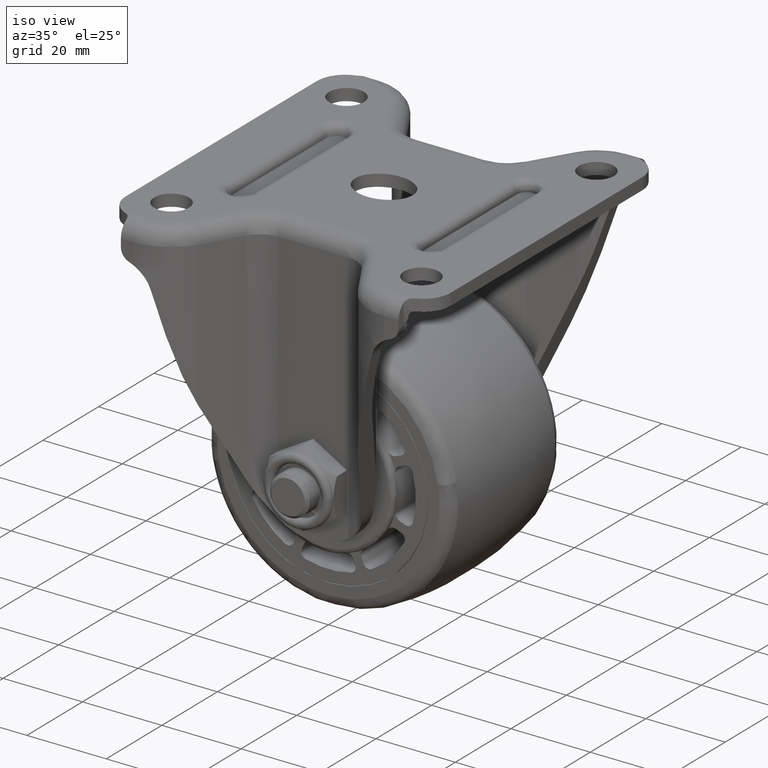
[diagram: clean part render]
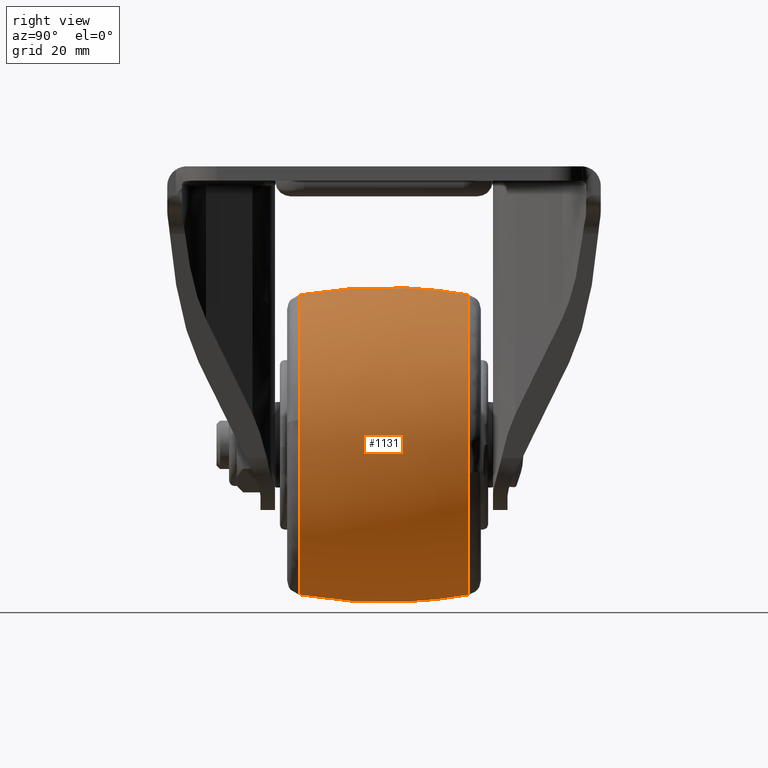
[diagram: tour spotlight — one face highlighted and labeled with its STEP entity id]
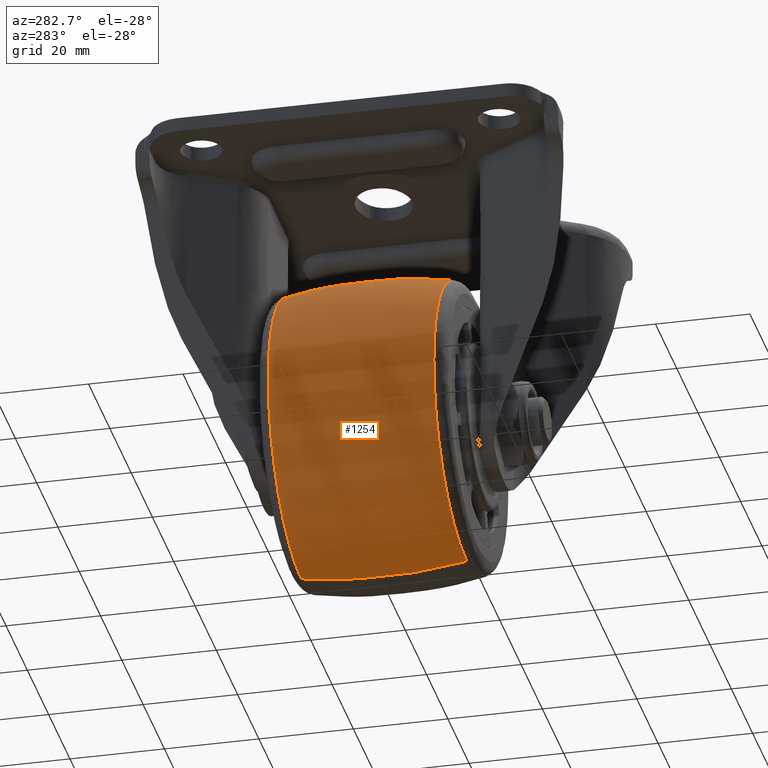
[diagram: tour spotlight — one face highlighted and labeled with its STEP entity id]
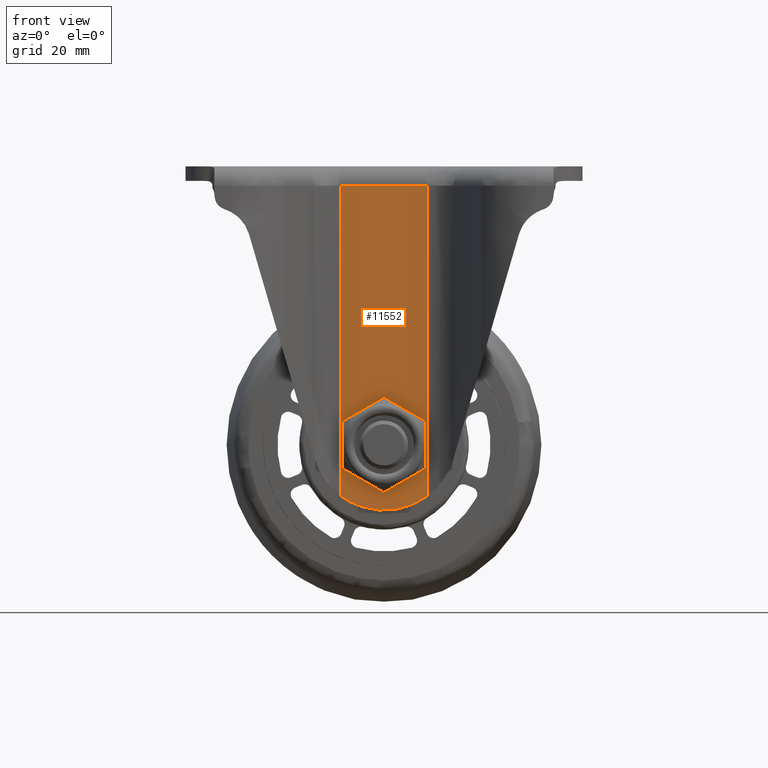
[diagram: tour spotlight — one face highlighted and labeled with its STEP entity id]
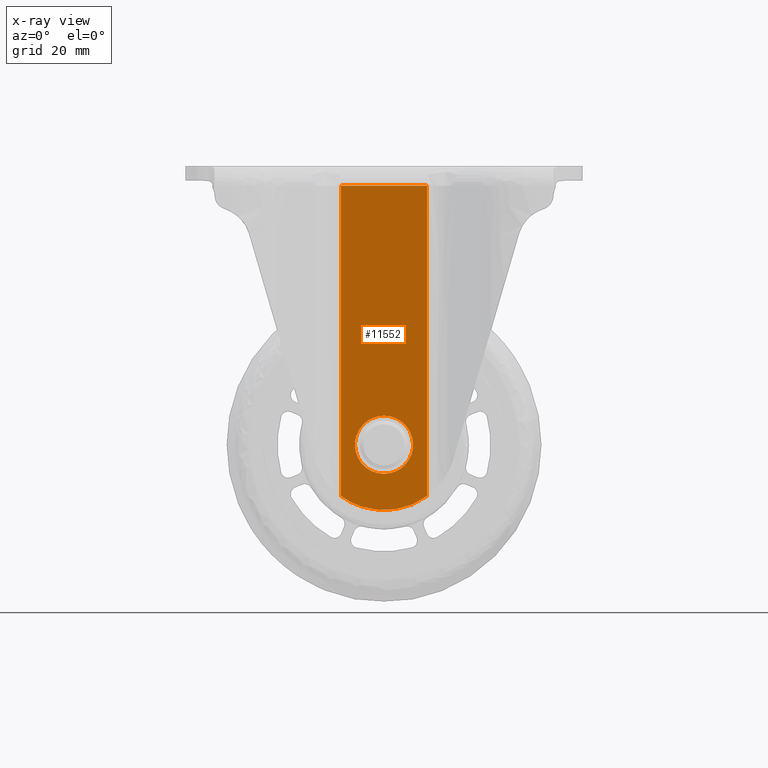
[diagram: x-ray of the same camera — body ghosted, this tour face saturated]
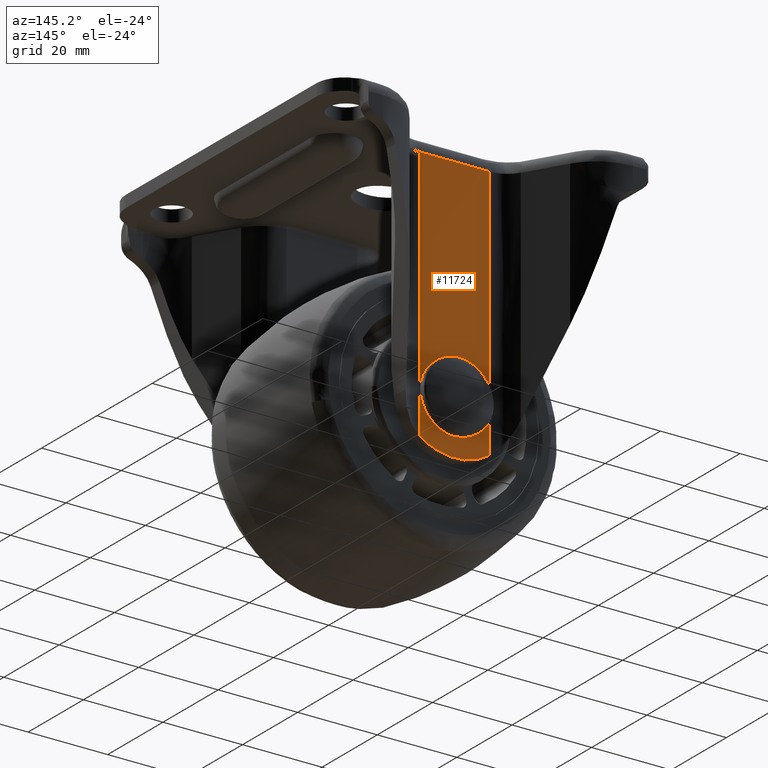
[diagram: tour spotlight — one face highlighted and labeled with its STEP entity id]
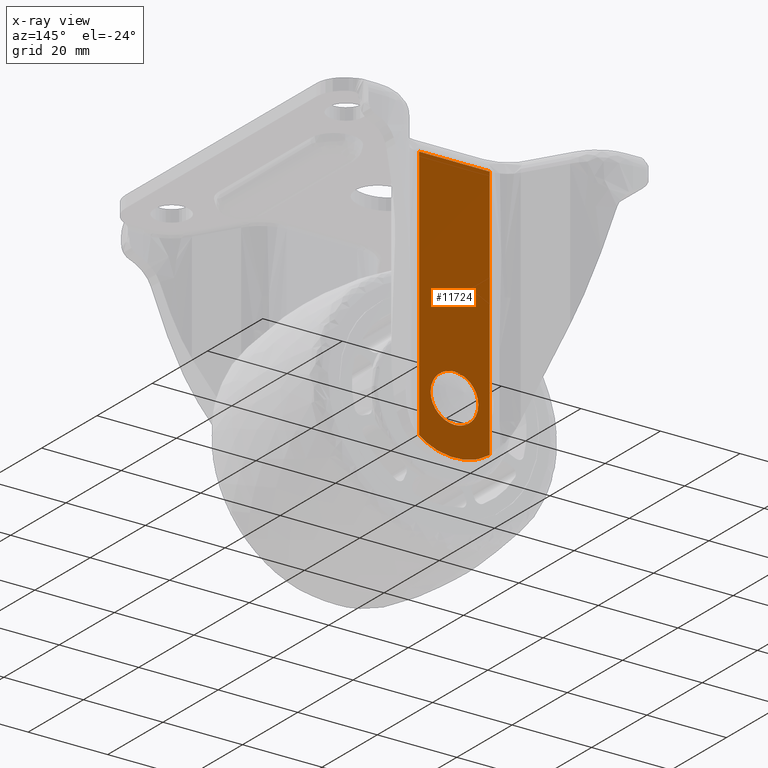
[diagram: x-ray of the same camera — body ghosted, this tour face saturated]
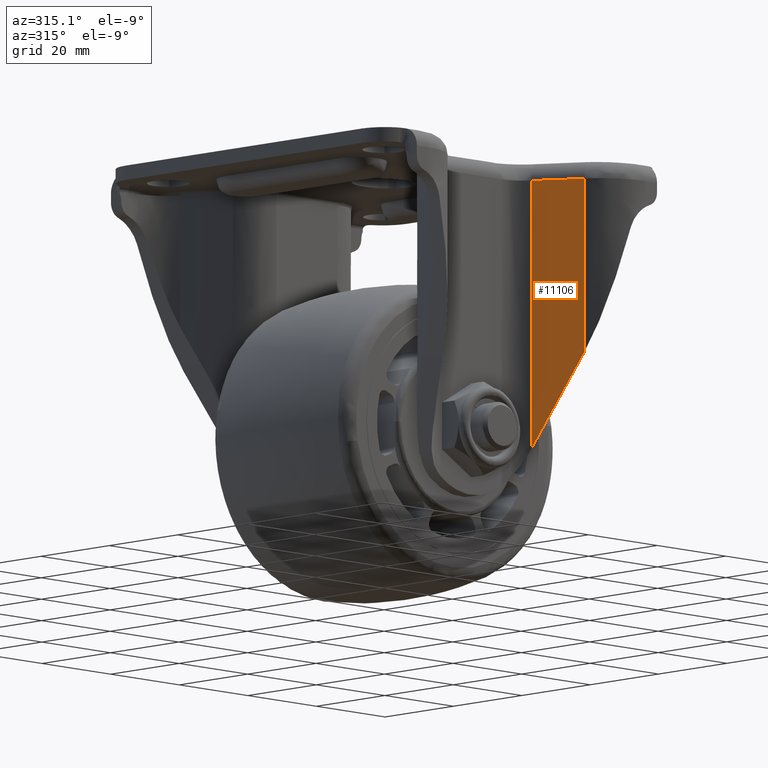
[diagram: tour spotlight — one face highlighted and labeled with its STEP entity id]
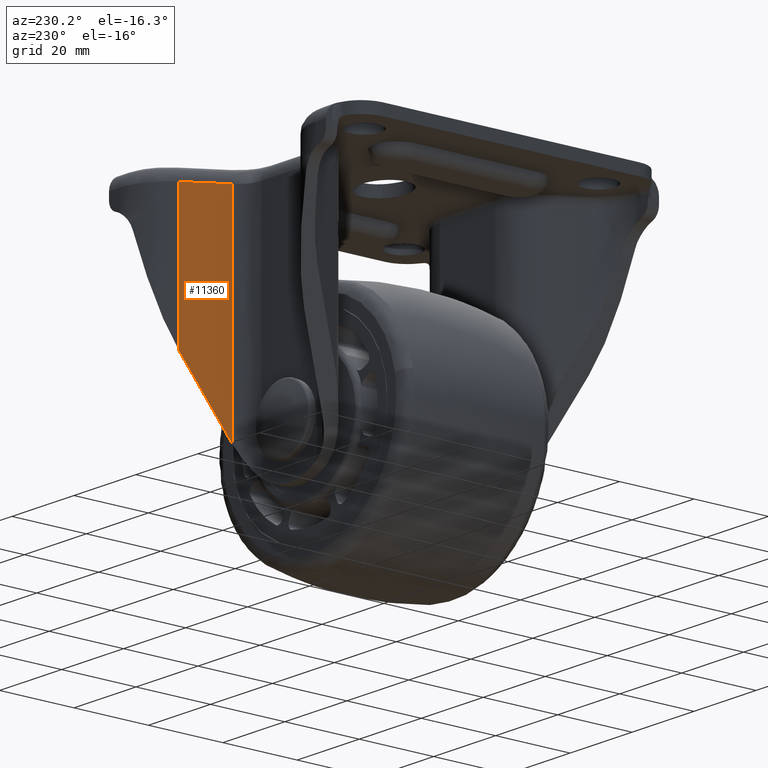
[diagram: tour spotlight — one face highlighted and labeled with its STEP entity id]
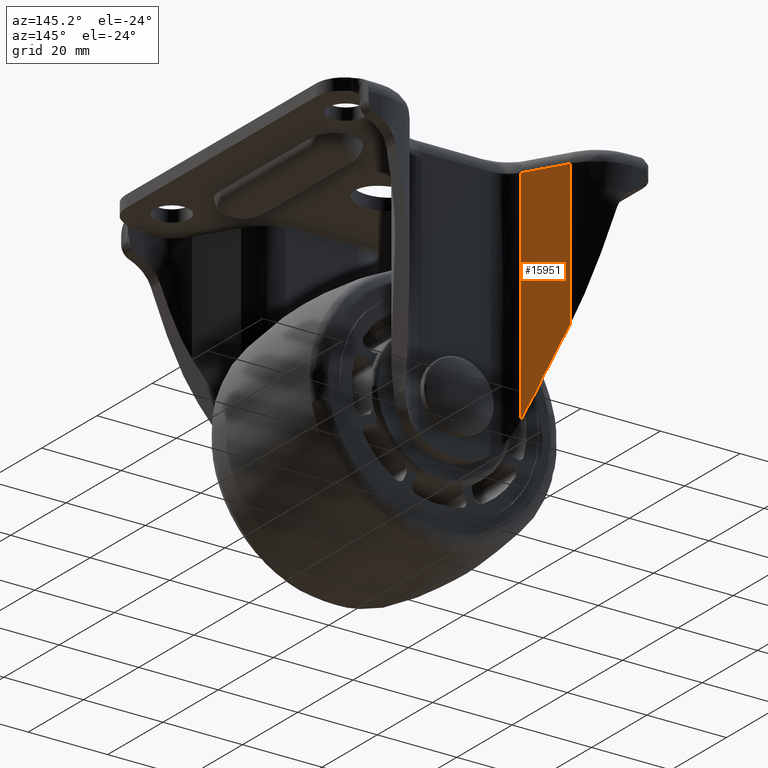
[diagram: tour spotlight — one face highlighted and labeled with its STEP entity id]
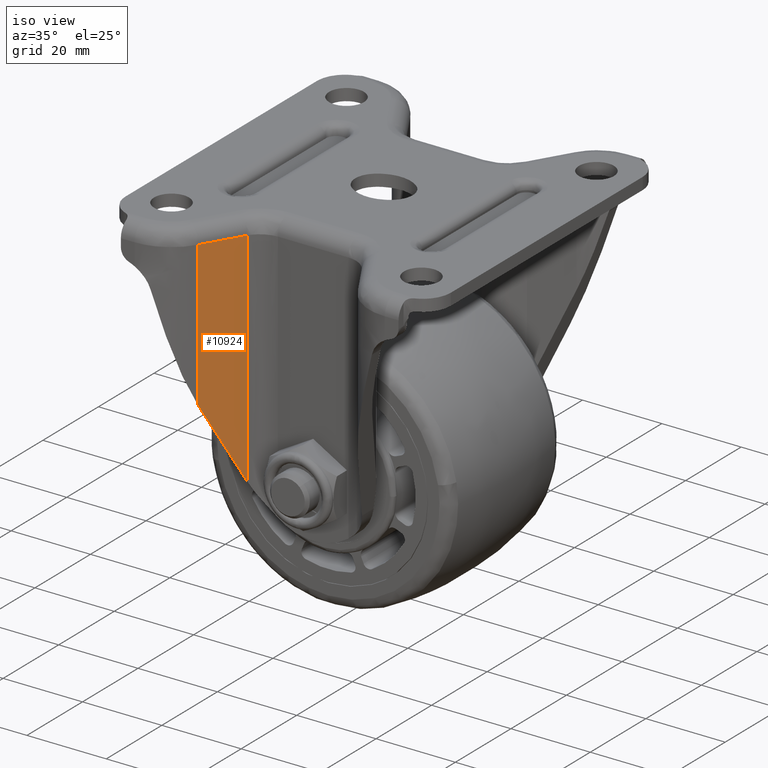
[diagram: tour spotlight — one face highlighted and labeled with its STEP entity id]
A machine part: a face-by-face anatomy tour. The part has 299 B-rep faces; the first image is the clean iso view, then the 8 largest visible faces are spotlighted one at a time (largest first), each with its STEP entity span.

Face 1 — right view, entity #1131. In plain terms, the highlighted face is a freeform B-spline surface patch.
Definition (entity closure, byte-faithful):
#987=CARTESIAN_POINT('',(-0.856139173198747,-19.280469753875106,-30.623715207231665));
#988=CARTESIAN_POINT('',(-0.908593974985393,-9.731530490283957,-32.500000000000007));
#989=CARTESIAN_POINT('',(-0.908593974985393,0.0,-32.500000000000007));
#990=CARTESIAN_POINT('',(-0.908593974985393,9.731530490283955,-32.500000000000007));
#991=CARTESIAN_POINT('',(-0.856139173198747,19.280469753875099,-30.623715207231665));
#992=CARTESIAN_POINT('',(-0.430562556700531,-19.280469753875106,-30.623715207231669));
#993=CARTESIAN_POINT('',(-0.456942699410384,-9.731530490283957,-32.500000000000000));
#994=CARTESIAN_POINT('',(-0.456942699410384,0.0,-32.500000000000000));
#995=CARTESIAN_POINT('',(-0.456942699410384,9.731530490283955,-32.500000000000000));
#996=CARTESIAN_POINT('',(-0.430562556700531,19.280469753875096,-30.623715207231669));
#997=CARTESIAN_POINT('',(30.623715207231665,-19.280469753875089,-30.623715207231665));
#998=CARTESIAN_POINT('',(32.499999999999993,-9.731530490283953,-32.499999999999993));
#999=CARTESIAN_POINT('',(32.500000000000007,0.0,-32.500000000000007));
#1000=CARTESIAN_POINT('',(32.499999999999993,9.731530490283952,-32.499999999999993));
#1001=CARTESIAN_POINT('',(30.623715207231665,19.280469753875089,-30.623715207231665));
#1002=CARTESIAN_POINT('',(30.623715207231662,-19.280469753875103,0.0));
#1003=CARTESIAN_POINT('',(32.499999999999993,-9.731530490283957,0.0));
#1004=CARTESIAN_POINT('',(32.500000000000000,0.0,0.0));
#1005=CARTESIAN_POINT('',(32.499999999999993,9.731530490283955,0.0));
#1006=CARTESIAN_POINT('',(30.623715207231673,19.280469753875103,0.0));
#1007=CARTESIAN_POINT('',(30.623715207231665,-19.280469753875089,30.623715207231665));
#1008=CARTESIAN_POINT('',(32.499999999999993,-9.731530490283953,32.499999999999993));
#1009=CARTESIAN_POINT('',(32.500000000000007,0.0,32.500000000000007));
#1010=CARTESIAN_POINT('',(32.499999999999993,9.731530490283952,32.499999999999993));
#1011=CARTESIAN_POINT('',(30.623715207231665,19.280469753875089,30.623715207231665));
#1012=CARTESIAN_POINT('',(-0.430562556700530,-19.280469753875106,30.623715207231669));
#1013=CARTESIAN_POINT('',(-0.456942699410383,-9.731530490283957,32.500000000000000));
#1014=CARTESIAN_POINT('',(-0.456942699410383,0.0,32.500000000000000));
#1015=CARTESIAN_POINT('',(-0.456942699410383,9.731530490283955,32.500000000000000));
#1016=CARTESIAN_POINT('',(-0.430562556700530,19.280469753875096,30.623715207231669));
#1017=CARTESIAN_POINT('',(-0.856139173198744,-19.280469753875106,30.623715207231665));
#1018=CARTESIAN_POINT('',(-0.908593974985391,-9.731530490283957,32.500000000000000));
#1019=CARTESIAN_POINT('',(-0.908593974985391,0.0,32.500000000000007));
#1020=CARTESIAN_POINT('',(-0.908593974985391,9.731530490283955,32.500000000000000));
#1021=CARTESIAN_POINT('',(-0.856139173198744,19.280469753875099,30.623715207231665));
#1029=(BOUNDED_SURFACE()B_SPLINE_SURFACE(2,2,((#987,#992,#997,#1002,#1007,#1012,#1017),(#988,#993,#998,#1003,#1008,#1013,#1018),(#989,#994,#999,#1004,#1009,#1014,#1019),(#990,#995,#1000,#1005,#1010,#1015,#1020),(#991,#996,#1001,#1006,#1011,#1016,#1021)),.UNSPECIFIED.,.F.,.F.,.U.)B_SPLINE_SURFACE_WITH_KNOTS((3,2,3),(3,1,2,1,3),(0.0,19.675401992808450,39.350803985616913),(0.0,1.076955262170048,54.924718370672402,108.772481479174800,109.849436741344800),.UNSPECIFIED.)GEOMETRIC_REPRESENTATION_ITEM()RATIONAL_B_SPLINE_SURFACE(((0.980708699014471,0.975030366269227,0.685435396261778,0.969352033523983,0.685435396261778,0.975030366269227,0.980708699014471),(0.991408181386219,0.985667898317530,0.692913461814418,0.979927615248842,0.692913461814418,0.985667898317530,0.991408181386219),(1.011715728752538,1.005857864376269,0.707106781186548,1.0,0.707106781186548,1.005857864376269,1.011715728752538),(0.991408181386219,0.985667898317530,0.692913461814418,0.979927615248842,0.692913461814418,0.985667898317530,0.991408181386219),(0.980708699014471,0.975030366269227,0.685435396261778,0.969352033523983,0.685435396261778,0.975030366269227,0.980708699014471)))REPRESENTATION_ITEM('')SURFACE());
#1030=CARTESIAN_POINT('',(0.0,-17.525756904777200,-30.952261756215570));
#1031=VERTEX_POINT('',#1030);
#1032=CARTESIAN_POINT('',(0.0,17.525757398797310,-30.952261668273788));
#1033=VERTEX_POINT('',#1032);
#1034=CARTESIAN_POINT('',(0.0,-17.525756904777200,-30.952261756215570));
#1035=CARTESIAN_POINT('',(0.0,-13.370421353496210,-31.692100188327061));
#1036=CARTESIAN_POINT('',(0.0,-5.239987016158849,-32.613409084386987));
#1037=CARTESIAN_POINT('',(0.0,6.524538029374305,-32.500045856004988));
#1038=CARTESIAN_POINT('',(0.0,14.002749739750620,-31.579457876793210));
#1039=CARTESIAN_POINT('',(0.0,17.525757398797310,-30.952261668273788));
#1040=B_SPLINE_CURVE_WITH_KNOTS('',3,(#1034,#1035,#1036,#1037,#1038,#1039),.UNSPECIFIED.,.F.,.U.,(4,1,1,4),(1.944521E-009,12.662039890658850,24.498281710933881,35.233487682683837),.UNSPECIFIED.);
#1041=EDGE_CURVE('',#1031,#1033,#1040,.T.);
#1042=ORIENTED_EDGE('',*,*,#1041,.T.);
#1043=CARTESIAN_POINT('',(30.404010644362661,17.525757632893409,-5.799875218789170));
#1044=VERTEX_POINT('',#1043);
#1045=CARTESIAN_POINT('',(0.0,17.525757398797310,-30.952261668273788));
#1046=CARTESIAN_POINT('',(2.284161954588713,17.525757409238210,-30.952709897507098));
#1047=CARTESIAN_POINT('',(5.515135104649169,17.525757425370340,-30.592909001694590));
#1048=CARTESIAN_POINT('',(10.033388092356789,17.525757450704550,-29.355571358114300));
#1049=CARTESIAN_POINT('',(13.399965950687180,17.525757471229699,-27.997762340464721));
#1050=CARTESIAN_POINT('',(16.755130408814040,17.525757493713709,-26.107908119827108));
#1051=CARTESIAN_POINT('',(19.823186104794939,17.525757516181262,-23.875374142445139));
#1052=CARTESIAN_POINT('',(23.000348391577990,17.525757541969089,-20.896403485636490));
#1053=CARTESIAN_POINT('',(25.652660726338070,17.525757566918450,-17.504632473912160));
#1054=CARTESIAN_POINT('',(27.771447229744592,17.525757590491128,-13.831781912032209));
#1055=CARTESIAN_POINT('',(29.353314381356672,17.525757611694210,-10.136584959972399));
#1056=CARTESIAN_POINT('',(30.111811812476770,17.525757625764498,-7.332148468918286));
#1057=CARTESIAN_POINT('',(30.404010644362661,17.525757632893409,-5.799875218789170));
#1058=B_SPLINE_CURVE_WITH_KNOTS('',3,(#1045,#1046,#1047,#1048,#1049,#1050,#1051,#1052,#1053,#1054,#1055,#1056,#1057),.UNSPECIFIED.,.F.,.U.,(4,1,1,1,1,1,1,1,1,1,4),(0.000000052141580,6.852342452785031,9.693563335324114,14.038970071219680,17.715851347497079,21.225603308796899,25.403793191189560,30.751994453358812,34.094613216229043,38.105743917555529,42.785386132706400),.UNSPECIFIED.);
#1059=EDGE_CURVE('',#1033,#1044,#1058,.T.);
#1060=ORIENTED_EDGE('',*,*,#1059,.T.);
#1061=CARTESIAN_POINT('',(0.0,17.525757398711619,30.952261668289051));
#1062=VERTEX_POINT('',#1061);
#1063=CARTESIAN_POINT('',(30.404010644362661,17.525757632893409,-5.799875218789170));
#1064=CARTESIAN_POINT('',(30.762937120658229,17.525757626901679,-3.919410940606337));
#1065=CARTESIAN_POINT('',(31.062059296469180,17.525757616037311,-0.800536838213344));
#1066=CARTESIAN_POINT('',(30.845400289247682,17.525757600602290,3.099817144732669));
#1067=CARTESIAN_POINT('',(30.352242134172659,17.525757586852048,6.326251867408215));
#1068=CARTESIAN_POINT('',(29.539590646894251,17.525757572333990,9.491417382510326));
#1069=CARTESIAN_POINT('',(28.069614453099959,17.525757553462679,13.263548669552311));
#1070=CARTESIAN_POINT('',(25.762368243721941,17.525757530473282,17.431742695048730));
#1071=CARTESIAN_POINT('',(22.681753857609628,17.525757506344320,21.261508164716759));
#1072=CARTESIAN_POINT('',(19.562930219686379,17.525757485987281,24.062912870592061));
#1073=CARTESIAN_POINT('',(16.456159155783311,17.525757467778259,26.306287034906969));
#1074=CARTESIAN_POINT('',(13.157254705836090,17.525757450555609,28.130412019730780));
#1075=CARTESIAN_POINT('',(9.041711470175828,17.525757431741710,29.699412156402602));
#1076=CARTESIAN_POINT('',(4.750503358322180,17.525757414510270,30.705119964668480));
#1077=CARTESIAN_POINT('',(1.630781746586889,17.525757403814129,30.952375046784500));
#1078=CARTESIAN_POINT('',(0.0,17.525757398711619,30.952261668289051));
#1079=B_SPLINE_CURVE_WITH_KNOTS('',3,(#1063,#1064,#1065,#1066,#1067,#1068,#1069,#1070,#1071,#1072,#1073,#1074,#1075,#1076,#1077,#1078),.UNSPECIFIED.,.F.,.U.,(4,1,1,1,1,1,1,1,1,1,1,1,1,4),(0.000000059456873,5.743202601971980,9.359293609766660,11.699129540403829,15.527947530455121,19.144065629913840,23.823739672517931,29.779620832213791,33.821112199925942,36.373671100576090,41.266050999263030,45.094877737927952,49.561833573445163,54.454168084180040),.UNSPECIFIED.);
#1080=EDGE_CURVE('',#1044,#1062,#1079,.T.);
#1081=ORIENTED_EDGE('',*,*,#1080,.T.);
#1082=CARTESIAN_POINT('',(0.0,-17.525756904688699,30.952261756231341));
#1083=VERTEX_POINT('',#1082);
#1084=CARTESIAN_POINT('',(0.0,-17.525756904688699,30.952261756231341));
#1085=CARTESIAN_POINT('',(0.0,-13.822084584276251,31.611623915921150));
#1086=CARTESIAN_POINT('',(0.0,-5.701531425854032,32.588644542142333));
#1087=CARTESIAN_POINT('',(0.0,6.068545673503115,32.556253461847042));
#1088=CARTESIAN_POINT('',(0.0,14.002750765742171,31.579446571535779));
#1089=CARTESIAN_POINT('',(0.0,17.525757398711619,30.952261668289051));
#1090=B_SPLINE_CURVE_WITH_KNOTS('',3,(#1084,#1085,#1086,#1087,#1088,#1089),.UNSPECIFIED.,.F.,.U.,(4,1,1,4),(1.950838E-009,11.285729403103799,24.498281710812041,35.233487682506883),.UNSPECIFIED.);
#1091=EDGE_CURVE('',#1083,#1062,#1090,.T.);
#1092=ORIENTED_EDGE('',*,*,#1091,.F.);
#1093=CARTESIAN_POINT('',(30.540160180614251,-17.525757148452580,5.033987871754214));
#1094=VERTEX_POINT('',#1093);
#1095=CARTESIAN_POINT('',(30.540160180614251,-17.525757148452580,5.033987871754214));
#1096=CARTESIAN_POINT('',(30.281919398056662,-17.525757141082551,6.601088755354095));
#1097=CARTESIAN_POINT('',(29.442337215585312,-17.525757123694088,10.026991717901140));
#1098=CARTESIAN_POINT('',(27.508742589350920,-17.525757097237729,14.466709151577120));
#1099=CARTESIAN_POINT('',(24.942479745212410,-17.525757069475581,18.492682278350991));
#1100=CARTESIAN_POINT('',(22.546901518326649,-17.525757047271110,21.308738959564099));
#1101=CARTESIAN_POINT('',(19.847961422461371,-17.525757024837731,23.825226596026670));
#1102=CARTESIAN_POINT('',(16.580421303315148,-17.525756999976529,26.288876425078399));
#1103=CARTESIAN_POINT('',(12.758720730087360,-17.525756974231150,28.323930522006979));
#1104=CARTESIAN_POINT('',(8.801080060201389,-17.525756950294490,29.739764829592911));
#1105=CARTESIAN_POINT('',(4.821394695828793,-17.525756928101000,30.687006760112059));
#1106=CARTESIAN_POINT('',(1.815146219963927,-17.525756913108960,30.952442924738548));
#1107=CARTESIAN_POINT('',(0.0,-17.525756904688699,30.952261756231341));
#1108=B_SPLINE_CURVE_WITH_KNOTS('',3,(#1095,#1096,#1097,#1098,#1099,#1100,#1101,#1102,#1103,#1104,#1105,#1106,#1107),.UNSPECIFIED.,.F.,.U.,(4,1,1,1,1,1,1,1,1,1,4),(0.000000054958321,4.764720667701781,10.550487389224971,14.464382945104930,19.058981908594710,21.611524713742430,25.525342026473840,31.311119165777619,34.544347426294202,38.117899537599449,43.563304237522381),.UNSPECIFIED.);
#1109=EDGE_CURVE('',#1094,#1083,#1108,.T.);
#1110=ORIENTED_EDGE('',*,*,#1109,.F.);
#1111=CARTESIAN_POINT('',(0.0,-17.525756904777200,-30.952261756215570));
#1112=CARTESIAN_POINT('',(1.747275785893831,-17.525756910614898,-30.952391331184391));
#1113=CARTESIAN_POINT('',(4.892320771205954,-17.525756922174850,-30.685237143167360));
#1114=CARTESIAN_POINT('',(9.182084798172813,-17.525756940588010,-29.648636447783701));
#1115=CARTESIAN_POINT('',(13.236173737415800,-17.525756960245459,-28.095795053580058));
#1116=CARTESIAN_POINT('',(17.463570160494719,-17.525756983633691,-25.742157452753851));
#1117=CARTESIAN_POINT('',(21.281177764316489,-17.525757008559641,-22.649915467843659));
#1118=CARTESIAN_POINT('',(24.096438210823610,-17.525757030244041,-19.530268652538439));
#1119=CARTESIAN_POINT('',(25.972879415539708,-17.525757046806010,-16.915275921907629));
#1120=CARTESIAN_POINT('',(27.815111532661369,-17.525757065307332,-13.778367625519980));
#1121=CARTESIAN_POINT('',(29.517799350405681,-17.525757086746001,-9.776745470058742));
#1122=CARTESIAN_POINT('',(30.650417059629820,-17.525757109043770,-5.072749683096410));
#1123=CARTESIAN_POINT('',(31.083939198492370,-17.525757129992549,-0.118026339971503));
#1124=CARTESIAN_POINT('',(30.847257273975671,-17.525757142151051,3.172082305136267));
#1125=CARTESIAN_POINT('',(30.540160180614251,-17.525757148452580,5.033987871754214));
#1126=B_SPLINE_CURVE_WITH_KNOTS('',3,(#1111,#1112,#1113,#1114,#1115,#1116,#1117,#1118,#1119,#1120,#1121,#1122,#1123,#1124,#1125),.UNSPECIFIED.,.F.,.U.,(4,1,1,1,1,1,1,1,1,1,1,1,4),(0.000000064459755,5.241820252651905,9.435274345049308,13.209389203633780,18.241559882642552,23.902748251931651,27.886463436430510,30.821867435202691,33.547648736851478,38.789475155061773,43.821626382174429,48.015087454626567,53.676248560949460),.UNSPECIFIED.);
#1127=EDGE_CURVE('',#1031,#1094,#1126,.T.);
#1128=ORIENTED_EDGE('',*,*,#1127,.F.);
#1129=EDGE_LOOP('',(#1042,#1060,#1081,#1092,#1110,#1128));
#1130=FACE_OUTER_BOUND('',#1129,.T.);
#1131=ADVANCED_FACE('',(#1130),#1029,.T.);

Face 2 — auxiliary view, entity #1254. In plain terms, the highlighted face is a freeform B-spline surface patch.
Definition (entity closure, byte-faithful):
#1030=CARTESIAN_POINT('',(0.0,-17.525756904777200,-30.952261756215570));
#1031=VERTEX_POINT('',#1030);
#1032=CARTESIAN_POINT('',(0.0,17.525757398797310,-30.952261668273788));
#1033=VERTEX_POINT('',#1032);
#1034=CARTESIAN_POINT('',(0.0,-17.525756904777200,-30.952261756215570));
#1035=CARTESIAN_POINT('',(0.0,-13.370421353496210,-31.692100188327061));
#1036=CARTESIAN_POINT('',(0.0,-5.239987016158849,-32.613409084386987));
#1037=CARTESIAN_POINT('',(0.0,6.524538029374305,-32.500045856004988));
#1038=CARTESIAN_POINT('',(0.0,14.002749739750620,-31.579457876793210));
#1039=CARTESIAN_POINT('',(0.0,17.525757398797310,-30.952261668273788));
#1040=B_SPLINE_CURVE_WITH_KNOTS('',3,(#1034,#1035,#1036,#1037,#1038,#1039),.UNSPECIFIED.,.F.,.U.,(4,1,1,4),(1.944521E-009,12.662039890658850,24.498281710933881,35.233487682683837),.UNSPECIFIED.);
#1041=EDGE_CURVE('',#1031,#1033,#1040,.T.);
#1061=CARTESIAN_POINT('',(0.0,17.525757398711619,30.952261668289051));
#1062=VERTEX_POINT('',#1061);
#1082=CARTESIAN_POINT('',(0.0,-17.525756904688699,30.952261756231341));
#1083=VERTEX_POINT('',#1082);
#1084=CARTESIAN_POINT('',(0.0,-17.525756904688699,30.952261756231341));
#1085=CARTESIAN_POINT('',(0.0,-13.822084584276251,31.611623915921150));
#1086=CARTESIAN_POINT('',(0.0,-5.701531425854032,32.588644542142333));
#1087=CARTESIAN_POINT('',(0.0,6.068545673503115,32.556253461847042));
#1088=CARTESIAN_POINT('',(0.0,14.002750765742171,31.579446571535779));
#1089=CARTESIAN_POINT('',(0.0,17.525757398711619,30.952261668289051));
#1090=B_SPLINE_CURVE_WITH_KNOTS('',3,(#1084,#1085,#1086,#1087,#1088,#1089),.UNSPECIFIED.,.F.,.U.,(4,1,1,4),(1.950838E-009,11.285729403103799,24.498281710812041,35.233487682506883),.UNSPECIFIED.);
#1091=EDGE_CURVE('',#1083,#1062,#1090,.T.);
#1132=CARTESIAN_POINT('',(0.856139173198747,-19.280469753875106,30.623715207231665));
#1133=CARTESIAN_POINT('',(0.908593974985393,-9.731530490283957,32.500000000000007));
#1134=CARTESIAN_POINT('',(0.908593974985393,0.0,32.500000000000007));
#1135=CARTESIAN_POINT('',(0.908593974985393,9.731530490283955,32.500000000000007));
#1136=CARTESIAN_POINT('',(0.856139173198747,19.280469753875099,30.623715207231665));
#1137=CARTESIAN_POINT('',(0.430562556700531,-19.280469753875106,30.623715207231669));
#1138=CARTESIAN_POINT('',(0.456942699410384,-9.731530490283957,32.500000000000000));
#1139=CARTESIAN_POINT('',(0.456942699410384,0.0,32.500000000000000));
#1140=CARTESIAN_POINT('',(0.456942699410384,9.731530490283955,32.500000000000000));
#1141=CARTESIAN_POINT('',(0.430562556700531,19.280469753875096,30.623715207231669));
#1142=CARTESIAN_POINT('',(-30.623715207231665,-19.280469753875089,30.623715207231665));
#1143=CARTESIAN_POINT('',(-32.499999999999993,-9.731530490283953,32.499999999999993));
#1144=CARTESIAN_POINT('',(-32.500000000000007,0.0,32.500000000000007));
#1145=CARTESIAN_POINT('',(-32.499999999999993,9.731530490283952,32.499999999999993));
#1146=CARTESIAN_POINT('',(-30.623715207231665,19.280469753875089,30.623715207231665));
#1147=CARTESIAN_POINT('',(-30.623715207231662,-19.280469753875103,0.0));
#1148=CARTESIAN_POINT('',(-32.499999999999993,-9.731530490283957,0.0));
#1149=CARTESIAN_POINT('',(-32.500000000000000,0.0,0.0));
#1150=CARTESIAN_POINT('',(-32.499999999999993,9.731530490283955,0.0));
#1151=CARTESIAN_POINT('',(-30.623715207231673,19.280469753875103,0.0));
#1152=CARTESIAN_POINT('',(-30.623715207231665,-19.280469753875089,-30.623715207231665));
#1153=CARTESIAN_POINT('',(-32.499999999999993,-9.731530490283953,-32.499999999999993));
#1154=CARTESIAN_POINT('',(-32.500000000000007,0.0,-32.500000000000007));
#1155=CARTESIAN_POINT('',(-32.499999999999993,9.731530490283952,-32.499999999999993));
#1156=CARTESIAN_POINT('',(-30.623715207231665,19.280469753875089,-30.623715207231665));
#1157=CARTESIAN_POINT('',(0.430562556700530,-19.280469753875106,-30.623715207231669));
#1158=CARTESIAN_POINT('',(0.456942699410383,-9.731530490283957,-32.500000000000000));
#1159=CARTESIAN_POINT('',(0.456942699410383,0.0,-32.500000000000000));
#1160=CARTESIAN_POINT('',(0.456942699410383,9.731530490283955,-32.500000000000000));
#1161=CARTESIAN_POINT('',(0.430562556700530,19.280469753875096,-30.623715207231669));
#1162=CARTESIAN_POINT('',(0.856139173198744,-19.280469753875106,-30.623715207231665));
#1163=CARTESIAN_POINT('',(0.908593974985391,-9.731530490283957,-32.500000000000000));
#1164=CARTESIAN_POINT('',(0.908593974985391,0.0,-32.500000000000007));
#1165=CARTESIAN_POINT('',(0.908593974985391,9.731530490283955,-32.500000000000000));
#1166=CARTESIAN_POINT('',(0.856139173198744,19.280469753875099,-30.623715207231665));
#1174=(BOUNDED_SURFACE()B_SPLINE_SURFACE(2,2,((#1132,#1137,#1142,#1147,#1152,#1157,#1162),(#1133,#1138,#1143,#1148,#1153,#1158,#1163),(#1134,#1139,#1144,#1149,#1154,#1159,#1164),(#1135,#1140,#1145,#1150,#1155,#1160,#1165),(#1136,#1141,#1146,#1151,#1156,#1161,#1166)),.UNSPECIFIED.,.F.,.F.,.U.)B_SPLINE_SURFACE_WITH_KNOTS((3,2,3),(3,1,2,1,3),(0.0,19.675401992808450,39.350803985616913),(0.0,1.076955262170048,54.924718370672402,108.772481479174800,109.849436741344800),.UNSPECIFIED.)GEOMETRIC_REPRESENTATION_ITEM()RATIONAL_B_SPLINE_SURFACE(((0.980708699014471,0.975030366269227,0.685435396261778,0.969352033523983,0.685435396261778,0.975030366269227,0.980708699014471),(0.991408181386219,0.985667898317530,0.692913461814418,0.979927615248842,0.692913461814418,0.985667898317530,0.991408181386219),(1.011715728752538,1.005857864376269,0.707106781186548,1.0,0.707106781186548,1.005857864376269,1.011715728752538),(0.991408181386219,0.985667898317530,0.692913461814418,0.979927615248842,0.692913461814418,0.985667898317530,0.991408181386219),(0.980708699014471,0.975030366269227,0.685435396261778,0.969352033523983,0.685435396261778,0.975030366269227,0.980708699014471)))REPRESENTATION_ITEM('')SURFACE());
#1175=ORIENTED_EDGE('',*,*,#1041,.F.);
#1176=CARTESIAN_POINT('',(-30.540160180611721,-17.525757148466980,-5.033987871753793));
#1177=VERTEX_POINT('',#1176);
#1178=CARTESIAN_POINT('',(-30.540160180611721,-17.525757148466980,-5.033987871753793));
#1179=CARTESIAN_POINT('',(-30.226715858379940,-17.525757139523289,-6.936939958168107));
#1180=CARTESIAN_POINT('',(-29.372558058144111,-17.525757122766141,-10.187881558142371));
#1181=CARTESIAN_POINT('',(-27.475647331963799,-17.525757097203591,-14.446822054016080));
#1182=CARTESIAN_POINT('',(-25.363105262829109,-17.525757073871581,-17.885082229068001));
#1183=CARTESIAN_POINT('',(-23.190031963504680,-17.525757053157211,-20.586571489304529));
#1184=CARTESIAN_POINT('',(-20.589968079992861,-17.525757030789212,-23.205094832932851));
#1185=CARTESIAN_POINT('',(-17.166667046234569,-17.525757004156290,-25.936950859575951));
#1186=CARTESIAN_POINT('',(-12.873009748146160,-17.525756974938460,-28.299585279419759));
#1187=CARTESIAN_POINT('',(-8.747545902732346,-17.525756950040378,-29.762671874534419));
#1188=CARTESIAN_POINT('',(-4.651219324560918,-17.525756927340790,-30.702000833608871));
#1189=CARTESIAN_POINT('',(-1.815149558063349,-17.525756913197160,-30.952454421885921));
#1190=CARTESIAN_POINT('',(0.0,-17.525756904777200,-30.952261756215570));
#1191=B_SPLINE_CURVE_WITH_KNOTS('',3,(#1178,#1179,#1180,#1181,#1182,#1183,#1184,#1185,#1186,#1187,#1188,#1189,#1190),.UNSPECIFIED.,.F.,.U.,(4,1,1,1,1,1,1,1,1,1,4),(0.000000055018177,5.785745742053578,10.039978184642839,13.953871596049140,17.867774047458632,20.420333239161032,25.014831762081052,30.970784296097680,35.054857434018807,38.117899537591938,43.563304237506642),.UNSPECIFIED.);
#1192=EDGE_CURVE('',#1177,#1031,#1191,.T.);
#1193=ORIENTED_EDGE('',*,*,#1192,.F.);
#1194=CARTESIAN_POINT('',(0.0,-17.525756904688699,30.952261756231341));
#1195=CARTESIAN_POINT('',(-1.397818819093093,-17.525756909358989,30.952318594141069));
#1196=CARTESIAN_POINT('',(-4.193435373528887,-17.525756919447399,30.762568375908678));
#1197=CARTESIAN_POINT('',(-8.104186589642669,-17.525756935688261,29.956707743577820));
#1198=CARTESIAN_POINT('',(-12.212511004756980,-17.525756954931051,28.556292875453380));
#1199=CARTESIAN_POINT('',(-16.150678322273620,-17.525756975984269,26.551869702653491));
#1200=CARTESIAN_POINT('',(-20.237192634282149,-17.525757001289769,23.593581966769289));
#1201=CARTESIAN_POINT('',(-23.559889628015831,-17.525757025489419,20.268299588677301));
#1202=CARTESIAN_POINT('',(-26.321911446420341,-17.525757049663088,16.473605216637260));
#1203=CARTESIAN_POINT('',(-28.235682217763610,-17.525757070178081,12.888485280192020));
#1204=CARTESIAN_POINT('',(-29.721787938973470,-17.525757090617549,8.959742554431312));
#1205=CARTESIAN_POINT('',(-30.662629329448681,-17.525757109619789,4.933182887200608));
#1206=CARTESIAN_POINT('',(-31.083936227768952,-17.525757129992041,0.118026556052717));
#1207=CARTESIAN_POINT('',(-30.847259666172601,-17.525757142160209,-3.172082061127728));
#1208=CARTESIAN_POINT('',(-30.540160180611721,-17.525757148466980,-5.033987871753793));
#1209=B_SPLINE_CURVE_WITH_KNOTS('',3,(#1194,#1195,#1196,#1197,#1198,#1199,#1200,#1201,#1202,#1203,#1204,#1205,#1206,#1207,#1208),.UNSPECIFIED.,.F.,.U.,(4,1,1,1,1,1,1,1,1,1,1,1,4),(0.000000064466583,4.193455742919760,8.386909233540223,11.951346168717979,17.193191037239419,21.596338774952152,27.047765386762599,31.241228370003160,35.644380092705283,39.208817316509858,43.821626382187517,48.015087454640678,53.676248560965021),.UNSPECIFIED.);
#1210=EDGE_CURVE('',#1083,#1177,#1209,.T.);
#1211=ORIENTED_EDGE('',*,*,#1210,.F.);
#1212=ORIENTED_EDGE('',*,*,#1091,.T.);
#1213=CARTESIAN_POINT('',(-30.404010644365460,17.525757632877362,5.799875218789708));
#1214=VERTEX_POINT('',#1213);
#1215=CARTESIAN_POINT('',(0.0,17.525757398711619,30.952261668289051));
#1216=CARTESIAN_POINT('',(-1.392750564068792,17.525757405078799,30.952313144380518));
#1217=CARTESIAN_POINT('',(-4.233952377037756,17.525757418795191,30.760193127060020));
#1218=CARTESIAN_POINT('',(-8.061261033027705,17.525757439306410,29.963676022827290));
#1219=CARTESIAN_POINT('',(-12.129475631342640,17.525757463120350,28.585386740512710));
#1220=CARTESIAN_POINT('',(-15.929249395997950,17.525757487693330,26.682119960884719));
#1221=CARTESIAN_POINT('',(-19.205242178192290,17.525757511487178,24.351778215657269));
#1222=CARTESIAN_POINT('',(-21.873217014069841,17.525757532650541,21.982150115089748));
#1223=CARTESIAN_POINT('',(-24.017140661937230,17.525757551348399,19.630660407753460));
#1224=CARTESIAN_POINT('',(-26.042876521229989,17.525757571214449,16.827988793760721));
#1225=CARTESIAN_POINT('',(-27.771463170693220,17.525757590452521,13.831793439301361));
#1226=CARTESIAN_POINT('',(-29.353316614614169,17.525757611666311,10.136586508446280));
#1227=CARTESIAN_POINT('',(-30.111810805927110,17.525757625744269,7.332148204894726));
#1228=CARTESIAN_POINT('',(-30.404010644365460,17.525757632877362,5.799875218789708));
#1229=B_SPLINE_CURVE_WITH_KNOTS('',3,(#1215,#1216,#1217,#1218,#1219,#1220,#1221,#1222,#1223,#1224,#1225,#1226,#1227,#1228),.UNSPECIFIED.,.F.,.U.,(4,1,1,1,1,1,1,1,1,1,1,4),(0.000000052049515,4.178251946622048,8.523641830223816,11.699133694757681,17.047312025914810,21.225603308754849,23.732506284140001,27.743629137993199,30.751994453340870,34.094613216220409,38.105743917557952,42.785386132721811),.UNSPECIFIED.);
#1230=EDGE_CURVE('',#1062,#1214,#1229,.T.);
#1231=ORIENTED_EDGE('',*,*,#1230,.T.);
#1232=CARTESIAN_POINT('',(-30.404010644365460,17.525757632877362,5.799875218789708));
#1233=CARTESIAN_POINT('',(-30.683091818839660,17.525757628220870,4.337285230516868));
#1234=CARTESIAN_POINT('',(-30.988260144179801,17.525757619298499,1.724782301650105));
#1235=CARTESIAN_POINT('',(-30.940834080461300,17.525757602505760,-2.677660295141938));
#1236=CARTESIAN_POINT('',(-30.327927837083529,17.525757585427460,-6.687513374377797));
#1237=CARTESIAN_POINT('',(-29.139954635493059,17.525757566801069,-10.631133931258089));
#1238=CARTESIAN_POINT('',(-27.905872854100458,17.525757552084659,-13.502240035980529));
#1239=CARTESIAN_POINT('',(-26.300731582635152,17.525757536010659,-16.425415734042790));
#1240=CARTESIAN_POINT('',(-24.481485402233819,17.525757520377010,-19.054877922421600));
#1241=CARTESIAN_POINT('',(-22.088273053074278,17.525757502616230,-21.772111656414388));
#1242=CARTESIAN_POINT('',(-19.620363412068059,17.525757486395399,-24.019908228920290));
#1243=CARTESIAN_POINT('',(-16.290199248656659,17.525757466819289,-26.442138108702821));
#1244=CARTESIAN_POINT('',(-12.831808490108211,17.525757449057600,-28.277591748017809));
#1245=CARTESIAN_POINT('',(-9.164854061910138,17.525757432517739,-29.617953722269121));
#1246=CARTESIAN_POINT('',(-5.175863381064067,17.525757416171679,-30.640205684012368));
#1247=CARTESIAN_POINT('',(-2.056225865764422,17.525757405229541,-30.952540593470360));
#1248=CARTESIAN_POINT('',(0.0,17.525757398797310,-30.952261668273788));
#1249=B_SPLINE_CURVE_WITH_KNOTS('',3,(#1232,#1233,#1234,#1235,#1236,#1237,#1238,#1239,#1240,#1241,#1242,#1243,#1244,#1245,#1246,#1247,#1248),.UNSPECIFIED.,.F.,.U.,(4,1,1,1,1,1,1,1,1,1,1,1,1,1,4),(0.000000059447792,4.466932761810526,7.870327087192393,13.188118679279990,16.591506232057949,20.207624674832179,22.547461542861640,26.589005235762802,29.779620832206788,33.395707121981467,36.586393884855283,42.116898309680742,45.094877737915603,48.285556921221939,54.454168084164998),.UNSPECIFIED.);
#1250=EDGE_CURVE('',#1214,#1033,#1249,.T.);
#1251=ORIENTED_EDGE('',*,*,#1250,.T.);
#1252=EDGE_LOOP('',(#1175,#1193,#1211,#1212,#1231,#1251));
#1253=FACE_OUTER_BOUND('',#1252,.T.);
#1254=ADVANCED_FACE('',(#1253),#1174,.T.);

Face 3 — front view, entity #11552. An x-ray twin of the same camera follows (body ghosted, this face saturated) — the face is partly hidden behind the body. In plain terms, the highlighted face is a freeform B-spline surface patch.
Definition (entity closure, byte-faithful):
#9278=CARTESIAN_POINT('',(-4.130127253373701,-25.500000000000000,4.352245935806493));
#9279=VERTEX_POINT('',#9278);
#9285=CARTESIAN_POINT('',(-5.999999999999838,-25.500000000000000,-0.000001396979707));
#9286=VERTEX_POINT('',#9285);
#9287=CARTESIAN_POINT('',(-4.130127253373701,-25.500000000000000,4.352245935806493));
#9288=CARTESIAN_POINT('',(-4.571888717231888,-25.500000000000011,3.933448140681791));
#9289=CARTESIAN_POINT('',(-5.215893128079406,-25.500000000000028,3.101767204736873));
#9290=CARTESIAN_POINT('',(-5.850858830483599,-25.500000000000011,1.597676105969814));
#9291=CARTESIAN_POINT('',(-6.000231755029711,-25.500000000000000,0.583343725334165));
#9292=CARTESIAN_POINT('',(-5.999999999999838,-25.500000000000000,-0.000001396979707));
#9293=B_SPLINE_CURVE_WITH_KNOTS('',3,(#9287,#9288,#9289,#9290,#9291,#9292),.UNSPECIFIED.,.F.,.U.,(4,1,1,4),(0.000000043648671,1.826074214155518,3.119521030151865,4.869502438942947),.UNSPECIFIED.);
#9294=EDGE_CURVE('',#9279,#9286,#9293,.T.);
#9296=CARTESIAN_POINT('',(0.0,-25.500000000000000,-6.0));
#9297=VERTEX_POINT('',#9296);
#9298=CARTESIAN_POINT('',(-5.999999999999838,-25.500000000000000,-0.000001396979707));
#9299=CARTESIAN_POINT('',(-6.000017558060441,-25.499999999999989,-0.343611575592018));
#9300=CARTESIAN_POINT('',(-5.934498755613486,-25.500000000000021,-1.104468147520529));
#9301=CARTESIAN_POINT('',(-5.598193178688803,-25.499999999999950,-2.291628568929439));
#9302=CARTESIAN_POINT('',(-4.973726671386223,-25.500000000000110,-3.442865105181237));
#9303=CARTESIAN_POINT('',(-4.226960835984764,-25.499999999999861,-4.297791622598433));
#9304=CARTESIAN_POINT('',(-3.428594289561259,-25.500000000000131,-4.952961627829074));
#9305=CARTESIAN_POINT('',(-2.495027656681363,-25.499999999999961,-5.504899246901395));
#9306=CARTESIAN_POINT('',(-1.300807071009809,-25.499999999999979,-5.907504541465607));
#9307=CARTESIAN_POINT('',(-0.417243989281693,-25.499999999999989,-6.000051202689821));
#9308=CARTESIAN_POINT('',(0.0,-25.500000000000000,-6.0));
#9309=B_SPLINE_CURVE_WITH_KNOTS('',3,(#9298,#9299,#9300,#9301,#9302,#9303,#9304,#9305,#9306,#9307,#9308),.UNSPECIFIED.,.F.,.U.,(4,1,1,1,1,1,1,1,4),(0.000000152012914,1.030840567578926,2.282576437944232,3.681586803699544,4.933306170334936,5.669596353509910,6.774100118434890,8.173101899288664,9.424836309894722),.UNSPECIFIED.);
#9310=EDGE_CURVE('',#9286,#9297,#9309,.T.);
#9312=CARTESIAN_POINT('',(4.130127253373715,-25.500000000000000,-4.352245935806510));
#9313=VERTEX_POINT('',#9312);
#9314=CARTESIAN_POINT('',(0.0,-25.500000000000000,-6.0));
#9315=CARTESIAN_POINT('',(0.640659872428343,-25.500000000000121,-6.000388121362043));
#9316=CARTESIAN_POINT('',(1.589396025095202,-25.499999999999929,-5.846479638422331));
#9317=CARTESIAN_POINT('',(2.993716863865734,-25.500000000000060,-5.257036308592226));
#9318=CARTESIAN_POINT('',(3.717216976822007,-25.500000000000028,-4.744380078575273));
#9319=CARTESIAN_POINT('',(4.130127253373715,-25.500000000000000,-4.352245935806510));
#9320=B_SPLINE_CURVE_WITH_KNOTS('',3,(#9314,#9315,#9316,#9317,#9318,#9319),.UNSPECIFIED.,.F.,.U.,(4,1,1,4),(0.000000035592286,1.921790404143268,2.847084425752280,4.555335978422050),.UNSPECIFIED.);
#9321=EDGE_CURVE('',#9297,#9313,#9320,.T.);
#9415=CARTESIAN_POINT('',(5.999999999999838,-25.500000000000000,0.000001396979614));
#9416=VERTEX_POINT('',#9415);
#9417=CARTESIAN_POINT('',(4.130127253373715,-25.500000000000000,-4.352245935806510));
#9418=CARTESIAN_POINT('',(4.627209156519855,-25.500000000000050,-3.881183044981032));
#9419=CARTESIAN_POINT('',(5.333902012328517,-25.499999999999869,-2.931490828631625));
#9420=CARTESIAN_POINT('',(5.892396242573327,-25.500000000000249,-1.394865231028232));
#9421=CARTESIAN_POINT('',(6.000087862718597,-25.500000000000099,-0.456516956179675));
#9422=CARTESIAN_POINT('',(5.999999999999838,-25.500000000000000,0.000001396979614));
#9423=B_SPLINE_CURVE_WITH_KNOTS('',3,(#9417,#9418,#9419,#9420,#9421,#9422),.UNSPECIFIED.,.F.,.U.,(4,1,1,4),(0.000000043648928,2.054337313140418,3.499953004779106,4.869502438942864),.UNSPECIFIED.);
#9424=EDGE_CURVE('',#9313,#9416,#9423,.T.);
#9426=CARTESIAN_POINT('',(0.0,-25.500000000000000,6.0));
#9427=VERTEX_POINT('',#9426);
#9428=CARTESIAN_POINT('',(5.999999999999838,-25.500000000000000,0.000001396979614));
#9429=CARTESIAN_POINT('',(6.000353500721063,-25.499999999999979,0.613649483341607));
#9430=CARTESIAN_POINT('',(5.863196494051961,-25.500000000000099,1.496994186699457));
#9431=CARTESIAN_POINT('',(5.377515619815402,-25.499999999999861,2.733455788917484));
#9432=CARTESIAN_POINT('',(4.885261853297697,-25.500000000000210,3.532318483113141));
#9433=CARTESIAN_POINT('',(4.092978532008566,-25.499999999999869,4.439585148063774));
#9434=CARTESIAN_POINT('',(3.194848978927018,-25.500000000000139,5.140491822717522));
#9435=CARTESIAN_POINT('',(1.742272924487744,-25.499999999999961,5.816557094478791));
#9436=CARTESIAN_POINT('',(0.687316239795873,-25.499999999999950,6.000492689935483));
#9437=CARTESIAN_POINT('',(0.0,-25.500000000000000,6.0));
#9438=B_SPLINE_CURVE_WITH_KNOTS('',3,(#9428,#9429,#9430,#9431,#9432,#9433,#9434,#9435,#9436,#9437),.UNSPECIFIED.,.F.,.U.,(4,1,1,1,1,1,1,4),(0.000000152009948,1.840787502785745,2.650735687319923,3.976140107455472,4.638832325520850,6.258661234375847,7.363154419309906,9.424836309894799),.UNSPECIFIED.);
#9439=EDGE_CURVE('',#9416,#9427,#9438,.T.);
#9441=CARTESIAN_POINT('',(0.0,-25.500000000000000,6.0));
#9442=CARTESIAN_POINT('',(-0.355881564035537,-25.500000000000039,6.000019136456133));
#9443=CARTESIAN_POINT('',(-1.138825521465350,-25.499999999999890,5.930187716850742));
#9444=CARTESIAN_POINT('',(-2.169334390078920,-25.500000000000171,5.628601442725437));
#9445=CARTESIAN_POINT('',(-3.212308361017691,-25.499999999999599,5.108378120538551));
#9446=CARTESIAN_POINT('',(-3.803196238940819,-25.500000000000579,4.662619941282354));
#9447=CARTESIAN_POINT('',(-4.130127253373701,-25.500000000000000,4.352245935806493));
#9448=B_SPLINE_CURVE_WITH_KNOTS('',3,(#9441,#9442,#9443,#9444,#9445,#9446,#9447),.UNSPECIFIED.,.F.,.U.,(4,1,1,1,4),(0.000000035591757,1.067655575936922,2.348822626008111,3.202968697594296,4.555335978422048),.UNSPECIFIED.);
#9449=EDGE_CURVE('',#9427,#9279,#9448,.T.);
#10939=CARTESIAN_POINT('',(-8.881149699124189,-25.499996999999851,-10.588224849900261));
#10940=VERTEX_POINT('',#10939);
#10941=CARTESIAN_POINT('',(-8.881149699124189,-25.499996999999901,53.500000000000000));
#10942=VERTEX_POINT('',#10941);
#10943=CARTESIAN_POINT('',(-8.881149699124189,-25.499996999999851,-10.588224849900261));
#10944=CARTESIAN_POINT('',(-8.881149699124189,-25.499996999999901,53.500000000000000));
#10945=QUASI_UNIFORM_CURVE('',1,(#10943,#10944),.UNSPECIFIED.,.F.,.U.);
#10946=EDGE_CURVE('',#10940,#10942,#10945,.T.);
#11022=CARTESIAN_POINT('',(8.881149699124141,-25.499996999999851,53.500000000000000));
#11023=VERTEX_POINT('',#11022);
#11035=CARTESIAN_POINT('',(8.881149699124141,-25.499996999999802,-10.588224849900300));
#11036=VERTEX_POINT('',#11035);
#11037=CARTESIAN_POINT('',(8.881149699124141,-25.499996999999802,-10.588224849900300));
#11038=CARTESIAN_POINT('',(8.881149699124141,-25.499996999999851,53.500000000000000));
#11039=QUASI_UNIFORM_CURVE('',1,(#11037,#11038),.UNSPECIFIED.,.F.,.U.);
#11040=EDGE_CURVE('',#11036,#11023,#11039,.T.);
#11516=CARTESIAN_POINT('',(9.768376519639864,-25.499996999999851,-16.846662449102251));
#11517=CARTESIAN_POINT('',(-9.768376996061909,-25.499996999999851,-16.846662449102251));
#11518=CARTESIAN_POINT('',(9.768376519639864,-25.499996999999851,56.846652265648700));
#11519=CARTESIAN_POINT('',(-9.768376996061909,-25.499996999999851,56.846652265648700));
#11520=B_SPLINE_SURFACE_WITH_KNOTS('',1,1,((#11516,#11518),(#11517,#11519)),.UNSPECIFIED.,.F.,.F.,.U.,(2,2),(2,2),(0.0,19.536753515701768),(0.0,73.693314714750954),.UNSPECIFIED.);
#11521=ORIENTED_EDGE('',*,*,#11040,.T.);
#11522=CARTESIAN_POINT('',(8.881149699124141,-25.499996999999851,53.500000000000000));
#11523=CARTESIAN_POINT('',(-8.881149699124189,-25.499996999999901,53.500000000000000));
#11524=QUASI_UNIFORM_CURVE('',1,(#11522,#11523),.UNSPECIFIED.,.F.,.U.);
#11525=EDGE_CURVE('',#11023,#10942,#11524,.T.);
#11526=ORIENTED_EDGE('',*,*,#11525,.T.);
#11527=ORIENTED_EDGE('',*,*,#10946,.F.);
#11528=CARTESIAN_POINT('',(8.881149699124141,-25.499996999999802,-10.588224849900300));
#11529=CARTESIAN_POINT('',(8.003589229943692,-25.499996999999791,-11.233174414509371));
#11530=CARTESIAN_POINT('',(6.408873979468400,-25.499996999999880,-12.155970504466801));
#11531=CARTESIAN_POINT('',(4.210569067027181,-25.499996999999759,-12.937376983698030));
#11532=CARTESIAN_POINT('',(2.226475048980924,-25.499996999999830,-13.376509175245721));
#11533=CARTESIAN_POINT('',(0.248049147845943,-25.499997000000000,-13.553305289878560));
#11534=CARTESIAN_POINT('',(-1.683775153114072,-25.499996999999830,-13.438351803718099));
#11535=CARTESIAN_POINT('',(-3.538532250110676,-25.499996999999858,-13.113722225988170));
#11536=CARTESIAN_POINT('',(-5.963033244885367,-25.499996999999869,-12.385013399325080));
#11537=CARTESIAN_POINT('',(-7.804235430247177,-25.499996999999869,-11.379933211495960));
#11538=CARTESIAN_POINT('',(-8.881149699124189,-25.499996999999851,-10.588224849900261));
#11539=B_SPLINE_CURVE_WITH_KNOTS('',3,(#11528,#11529,#11530,#11531,#11532,#11533,#11534,#11535,#11536,#11537,#11538),.UNSPECIFIED.,.F.,.U.,(4,1,1,1,1,1,1,1,4),(0.000000054525124,3.267180752255968,5.494811719497378,6.979903055924011,9.356053752819783,11.435122852231521,12.771719235524950,14.999349811330831,19.009075791508650),.UNSPECIFIED.);
#11540=EDGE_CURVE('',#11036,#10940,#11539,.T.);
#11541=ORIENTED_EDGE('',*,*,#11540,.F.);
#11542=EDGE_LOOP('',(#11521,#11526,#11527,#11541));
#11543=FACE_OUTER_BOUND('',#11542,.T.);
#11544=ORIENTED_EDGE('',*,*,#9310,.F.);
#11545=ORIENTED_EDGE('',*,*,#9294,.F.);
#11546=ORIENTED_EDGE('',*,*,#9449,.F.);
#11547=ORIENTED_EDGE('',*,*,#9439,.F.);
#11548=ORIENTED_EDGE('',*,*,#9424,.F.);
#11549=ORIENTED_EDGE('',*,*,#9321,.F.);
#11550=EDGE_LOOP('',(#11544,#11545,#11546,#11547,#11548,#11549));
#11551=FACE_BOUND('',#11550,.T.);
#11552=ADVANCED_FACE('',(#11543,#11551),#11520,.F.);

Face 4 — auxiliary view, entity #11724. An x-ray twin of the same camera follows (body ghosted, this face saturated) — the face is partly hidden behind the body. In plain terms, the highlighted face is a freeform B-spline surface patch.
Definition (entity closure, byte-faithful):
#9099=CARTESIAN_POINT('',(4.205455830534884,25.500000000000000,4.279502944001859));
#9100=VERTEX_POINT('',#9099);
#9106=CARTESIAN_POINT('',(5.999999999999838,25.500000000000000,0.000001396979614));
#9107=VERTEX_POINT('',#9106);
#9108=CARTESIAN_POINT('',(5.999999999999838,25.500000000000000,0.000001396979614));
#9109=CARTESIAN_POINT('',(6.000431893525847,25.500000000000021,0.670098142120393));
#9110=CARTESIAN_POINT('',(5.806728560072627,25.499999999999989,1.811380367168864));
#9111=CARTESIAN_POINT('',(5.106753127866618,25.500000000000021,3.249384170891394));
#9112=CARTESIAN_POINT('',(4.524121847846565,25.499999999999979,3.966463753209204));
#9113=CARTESIAN_POINT('',(4.205455830534884,25.500000000000000,4.279502944001859));
#9114=B_SPLINE_CURVE_WITH_KNOTS('',3,(#9108,#9109,#9110,#9111,#9112,#9113),.UNSPECIFIED.,.F.,.U.,(4,1,1,4),(0.000000039174944,2.010155731980376,3.424682552825614,4.764778164379364),.UNSPECIFIED.);
#9115=EDGE_CURVE('',#9107,#9100,#9114,.T.);
#9117=CARTESIAN_POINT('',(0.0,25.500000000000000,-6.0));
#9118=VERTEX_POINT('',#9117);
#9119=CARTESIAN_POINT('',(0.0,25.500000000000000,-6.0));
#9120=CARTESIAN_POINT('',(0.392689339204142,25.500000000000171,-6.000030513106863));
#9121=CARTESIAN_POINT('',(1.276277815797222,25.499999999999730,-5.913033710757750));
#9122=CARTESIAN_POINT('',(2.450312867274716,25.500000000000188,-5.525211261828710));
#9123=CARTESIAN_POINT('',(3.365455130264078,25.499999999999911,-4.991679276878592));
#9124=CARTESIAN_POINT('',(4.233419855806385,25.500000000000082,-4.305918858097352));
#9125=CARTESIAN_POINT('',(4.993724386200035,25.500000000000039,-3.424463718613029));
#9126=CARTESIAN_POINT('',(5.584216712490937,25.499999999999780,-2.286030825246739));
#9127=CARTESIAN_POINT('',(5.920302791665804,25.500000000000519,-1.178073880704357));
#9128=CARTESIAN_POINT('',(6.000064886339296,25.499999999999542,-0.417244792851952));
#9129=CARTESIAN_POINT('',(5.999999999999838,25.500000000000000,0.000001396979614));
#9130=B_SPLINE_CURVE_WITH_KNOTS('',3,(#9119,#9120,#9121,#9122,#9123,#9124,#9125,#9126,#9127,#9128,#9129),.UNSPECIFIED.,.F.,.U.,(4,1,1,1,1,1,1,1,4),(0.000000151527095,1.178082705841018,2.650736129995893,3.681587419235738,4.344296694572804,5.964153634147814,7.142261128285304,8.173103263966727,9.424837884626268),.UNSPECIFIED.);
#9131=EDGE_CURVE('',#9118,#9107,#9130,.T.);
#9133=CARTESIAN_POINT('',(-4.205455830534899,25.500000000000000,-4.279502944001875));
#9134=VERTEX_POINT('',#9133);
#9135=CARTESIAN_POINT('',(-4.205455830534899,25.500000000000000,-4.279502944001875));
#9136=CARTESIAN_POINT('',(-3.790119425020047,25.499999999999950,-4.687968823911657));
#9137=CARTESIAN_POINT('',(-2.997719274190756,25.500000000000121,-5.266496227050533));
#9138=CARTESIAN_POINT('',(-1.553214203813661,25.499999999999801,-5.857446522470792));
#9139=CARTESIAN_POINT('',(-0.582534921727310,25.500000000000270,-6.000251864481913));
#9140=CARTESIAN_POINT('',(0.0,25.500000000000000,-6.0));
#9141=B_SPLINE_CURVE_WITH_KNOTS('',3,(#9135,#9136,#9137,#9138,#9139,#9140),.UNSPECIFIED.,.F.,.U.,(4,1,1,4),(0.000000035069328,1.747533936727410,2.912526819374394,4.660057831953979),.UNSPECIFIED.);
#9142=EDGE_CURVE('',#9134,#9118,#9141,.T.);
#9182=CARTESIAN_POINT('',(-5.999999999999838,25.500000000000000,-0.000001396979707));
#9183=VERTEX_POINT('',#9182);
#9184=CARTESIAN_POINT('',(-5.999999999999838,25.500000000000000,-0.000001396979707));
#9185=CARTESIAN_POINT('',(-6.000116480296557,25.499999999999979,-0.471526671091258));
#9186=CARTESIAN_POINT('',(-5.908811501458304,25.500000000000060,-1.240783409132077));
#9187=CARTESIAN_POINT('',(-5.559378259145261,25.499999999999929,-2.330875058466971));
#9188=CARTESIAN_POINT('',(-5.043758278426926,25.500000000000352,-3.326900861206108));
#9189=CARTESIAN_POINT('',(-4.524117608556258,25.499999999999378,-3.966462587021481));
#9190=CARTESIAN_POINT('',(-4.205455830534899,25.500000000000000,-4.279502944001875));
#9191=B_SPLINE_CURVE_WITH_KNOTS('',3,(#9184,#9185,#9186,#9187,#9188,#9189,#9190),.UNSPECIFIED.,.F.,.U.,(4,1,1,1,4),(0.000000039175315,1.414548621792845,2.307961910454692,3.424682552825659,4.764778164379275),.UNSPECIFIED.);
#9192=EDGE_CURVE('',#9183,#9134,#9191,.T.);
#9194=CARTESIAN_POINT('',(0.0,25.500000000000000,6.0));
#9195=VERTEX_POINT('',#9194);
#9196=CARTESIAN_POINT('',(0.0,25.500000000000000,6.0));
#9197=CARTESIAN_POINT('',(-0.613628212372561,25.499999999999929,6.000326017973750));
#9198=CARTESIAN_POINT('',(-1.693363143874687,25.500000000000071,5.832820540161323));
#9199=CARTESIAN_POINT('',(-3.000025556056965,25.500000000000021,5.243955962097050));
#9200=CARTESIAN_POINT('',(-4.118166241827391,25.500000000000099,4.435864804797071));
#9201=CARTESIAN_POINT('',(-4.982415949755870,25.499999999999758,3.446404392344255));
#9202=CARTESIAN_POINT('',(-5.538758983222612,25.500000000000249,2.373580892248212));
#9203=CARTESIAN_POINT('',(-5.901328540269486,25.499999999999840,1.276191287596940));
#9204=CARTESIAN_POINT('',(-6.000150383768022,25.500000000000060,0.515430053530978));
#9205=CARTESIAN_POINT('',(-5.999999999999838,25.500000000000000,-0.000001396979707));
#9206=B_SPLINE_CURVE_WITH_KNOTS('',3,(#9196,#9197,#9198,#9199,#9200,#9201,#9202,#9203,#9204,#9205),.UNSPECIFIED.,.F.,.U.,(4,1,1,1,1,1,1,4),(0.000000151531076,1.840787810121348,3.239794533209812,4.270642131698494,5.964153634149000,7.142261128286062,7.878594619263637,9.424837884626296),.UNSPECIFIED.);
#9207=EDGE_CURVE('',#9195,#9183,#9206,.T.);
#9209=CARTESIAN_POINT('',(4.205455830534884,25.500000000000000,4.279502944001859));
#9210=CARTESIAN_POINT('',(3.841992703518731,25.500000000000011,4.636835849305030));
#9211=CARTESIAN_POINT('',(3.003835222845786,25.500000000000021,5.272879791566922));
#9212=CARTESIAN_POINT('',(1.553315381469920,25.499999999999950,5.866277292939741));
#9213=CARTESIAN_POINT('',(0.509699754603615,25.500000000000110,6.000134860508246));
#9214=CARTESIAN_POINT('',(0.0,25.500000000000000,6.0));
#9215=B_SPLINE_CURVE_WITH_KNOTS('',3,(#9209,#9210,#9211,#9212,#9213,#9214),.UNSPECIFIED.,.F.,.U.,(4,1,1,4),(0.000000035069496,1.529089744459394,3.130971198076341,4.660057831953967),.UNSPECIFIED.);
#9216=EDGE_CURVE('',#9100,#9195,#9215,.T.);
#11375=CARTESIAN_POINT('',(8.881149699124141,25.499996999999698,-10.588224849900300));
#11376=VERTEX_POINT('',#11375);
#11377=CARTESIAN_POINT('',(8.881149699124141,25.499996999999649,53.500000000000000));
#11378=VERTEX_POINT('',#11377);
#11379=CARTESIAN_POINT('',(8.881149699124141,25.499996999999698,-10.588224849900300));
#11380=CARTESIAN_POINT('',(8.881149699124141,25.499996999999649,53.500000000000000));
#11381=QUASI_UNIFORM_CURVE('',1,(#11379,#11380),.UNSPECIFIED.,.F.,.U.);
#11382=EDGE_CURVE('',#11376,#11378,#11381,.T.);
#11681=CARTESIAN_POINT('',(-9.768376519639922,25.499996999999649,-16.846695154401498));
#11682=CARTESIAN_POINT('',(9.768376996061857,25.499996999999649,-16.846695154401498));
#11683=CARTESIAN_POINT('',(-9.768376519639922,25.499996999999649,56.846653821560587));
#11684=CARTESIAN_POINT('',(9.768376996061857,25.499996999999649,56.846653821560587));
#11685=B_SPLINE_SURFACE_WITH_KNOTS('',1,1,((#11681,#11683),(#11682,#11684)),.UNSPECIFIED.,.F.,.F.,.U.,(2,2),(2,2),(0.0,19.536753515701779),(0.0,73.693348975962095),.UNSPECIFIED.);
#11686=CARTESIAN_POINT('',(-8.881149699124199,25.499996999999748,-10.588224849900261));
#11687=VERTEX_POINT('',#11686);
#11688=CARTESIAN_POINT('',(-8.881149699124199,25.499996999999649,53.500000000000000));
#11689=VERTEX_POINT('',#11688);
#11690=CARTESIAN_POINT('',(-8.881149699124199,25.499996999999748,-10.588224849900261));
#11691=CARTESIAN_POINT('',(-8.881149699124199,25.499996999999649,53.500000000000000));
#11692=QUASI_UNIFORM_CURVE('',1,(#11690,#11691),.UNSPECIFIED.,.F.,.U.);
#11693=EDGE_CURVE('',#11687,#11689,#11692,.T.);
#11694=ORIENTED_EDGE('',*,*,#11693,.T.);
#11695=CARTESIAN_POINT('',(-8.881149699124199,25.499996999999649,53.500000000000000));
#11696=CARTESIAN_POINT('',(8.881149699124141,25.499996999999649,53.500000000000000));
#11697=QUASI_UNIFORM_CURVE('',1,(#11695,#11696),.UNSPECIFIED.,.F.,.U.);
#11698=EDGE_CURVE('',#11689,#11378,#11697,.T.);
#11699=ORIENTED_EDGE('',*,*,#11698,.T.);
#11700=ORIENTED_EDGE('',*,*,#11382,.F.);
#11701=CARTESIAN_POINT('',(-8.881149699124199,25.499996999999748,-10.588224849900261));
#11702=CARTESIAN_POINT('',(-7.804233545385632,25.499996999999730,-11.379917863712350));
#11703=CARTESIAN_POINT('',(-5.831510450351780,25.499996999999649,-12.456830148320870));
#11704=CARTESIAN_POINT('',(-3.058915362870287,25.499996999999791,-13.245553711639690));
#11705=CARTESIAN_POINT('',(-0.942206154889189,25.499996999999649,-13.508773896599960));
#11706=CARTESIAN_POINT('',(1.438138162147165,25.499996999999791,-13.509008148635020));
#11707=CARTESIAN_POINT('',(3.941093055118155,25.499996999999730,-13.070951908662421));
#11708=CARTESIAN_POINT('',(6.630126928270275,25.499996999999809,-12.039099506069370));
#11709=CARTESIAN_POINT('',(8.123244759573156,25.499996999999610,-11.145198380458890));
#11710=CARTESIAN_POINT('',(8.881149699124141,25.499996999999698,-10.588224849900300));
#11711=B_SPLINE_CURVE_WITH_KNOTS('',3,(#11701,#11702,#11703,#11704,#11705,#11706,#11707,#11708,#11709,#11710),.UNSPECIFIED.,.F.,.U.,(4,1,1,1,1,1,1,4),(0.000000054525149,4.009725738971911,6.682896501488182,8.613496057051068,10.395579548122409,13.811277417403989,16.187434376718841,19.009075791508661),.UNSPECIFIED.);
#11712=EDGE_CURVE('',#11687,#11376,#11711,.T.);
#11713=ORIENTED_EDGE('',*,*,#11712,.F.);
#11714=EDGE_LOOP('',(#11694,#11699,#11700,#11713));
#11715=FACE_OUTER_BOUND('',#11714,.T.);
#11716=ORIENTED_EDGE('',*,*,#9207,.T.);
#11717=ORIENTED_EDGE('',*,*,#9192,.T.);
#11718=ORIENTED_EDGE('',*,*,#9142,.T.);
#11719=ORIENTED_EDGE('',*,*,#9131,.T.);
#11720=ORIENTED_EDGE('',*,*,#9115,.T.);
#11721=ORIENTED_EDGE('',*,*,#9216,.T.);
#11722=EDGE_LOOP('',(#11716,#11717,#11718,#11719,#11720,#11721));
#11723=FACE_BOUND('',#11722,.T.);
#11724=ADVANCED_FACE('',(#11715,#11723),#11685,.F.);

Face 5 — auxiliary view, entity #11106. In plain terms, the highlighted face is a freeform B-spline surface patch.
Definition (entity closure, byte-faithful):
#11013=CARTESIAN_POINT('',(14.468953329208960,-28.679387027177000,-2.463592417896510));
#11014=VERTEX_POINT('',#11013);
#11015=CARTESIAN_POINT('',(14.468953329208960,-28.679387027177000,53.500000000000000));
#11016=VERTEX_POINT('',#11015);
#11017=CARTESIAN_POINT('',(14.468953329208960,-28.679387027177000,-2.463592417896510));
#11018=CARTESIAN_POINT('',(14.468953329208960,-28.679387027177000,53.500000000000000));
#11019=QUASI_UNIFORM_CURVE('',1,(#11017,#11018),.UNSPECIFIED.,.F.,.U.);
#11020=EDGE_CURVE('',#11014,#11016,#11019,.T.);
#11079=CARTESIAN_POINT('',(20.467550760912090,-38.773612117934391,-5.258973750702133));
#11080=CARTESIAN_POINT('',(14.183577747957321,-28.199167211568881,-5.258973750702133));
#11081=CARTESIAN_POINT('',(20.467550760912090,-38.773612117934398,56.295382833866157));
#11082=CARTESIAN_POINT('',(14.183577747957321,-28.199167211568881,56.295382833866157));
#11083=B_SPLINE_SURFACE_WITH_KNOTS('',1,1,((#11079,#11081),(#11080,#11082)),.UNSPECIFIED.,.F.,.F.,.U.,(2,2),(2,2),(0.0,12.300699244567500),(0.0,61.554356584568289),.UNSPECIFIED.);
#11084=CARTESIAN_POINT('',(20.182175332901000,-38.293392560194008,17.124599365207850));
#11085=VERTEX_POINT('',#11084);
#11086=CARTESIAN_POINT('',(20.182175332901000,-38.293392560194008,53.500000000000000));
#11087=VERTEX_POINT('',#11086);
#11088=CARTESIAN_POINT('',(20.182175332901000,-38.293392560194008,17.124599365207850));
#11089=CARTESIAN_POINT('',(20.182175332901000,-38.293392560194008,53.500000000000000));
#11090=QUASI_UNIFORM_CURVE('',1,(#11088,#11089),.UNSPECIFIED.,.F.,.U.);
#11091=EDGE_CURVE('',#11085,#11087,#11090,.T.);
#11092=ORIENTED_EDGE('',*,*,#11091,.T.);
#11093=CARTESIAN_POINT('',(20.182175332901000,-38.293392560194008,53.500000000000000));
#11094=CARTESIAN_POINT('',(14.468953329208960,-28.679387027177000,53.500000000000000));
#11095=QUASI_UNIFORM_CURVE('',1,(#11093,#11094),.UNSPECIFIED.,.F.,.U.);
#11096=EDGE_CURVE('',#11087,#11016,#11095,.T.);
#11097=ORIENTED_EDGE('',*,*,#11096,.T.);
#11098=ORIENTED_EDGE('',*,*,#11020,.F.);
#11099=CARTESIAN_POINT('',(14.468953329208960,-28.679387027177000,-2.463592417896510));
#11100=CARTESIAN_POINT('',(20.182175332901000,-38.293392560194008,17.124599365207850));
#11101=QUASI_UNIFORM_CURVE('',1,(#11099,#11100),.UNSPECIFIED.,.F.,.U.);
#11102=EDGE_CURVE('',#11014,#11085,#11101,.T.);
#11103=ORIENTED_EDGE('',*,*,#11102,.T.);
#11104=EDGE_LOOP('',(#11092,#11097,#11098,#11103));
#11105=FACE_OUTER_BOUND('',#11104,.T.);
#11106=ADVANCED_FACE('',(#11105),#11083,.F.);

Face 6 — auxiliary view, entity #11360. In plain terms, the highlighted face is a freeform B-spline surface patch.
Definition (entity closure, byte-faithful):
#11287=CARTESIAN_POINT('',(20.182175332901000,38.293392560193801,17.124599365207850));
#11288=VERTEX_POINT('',#11287);
#11289=CARTESIAN_POINT('',(20.182175332901000,38.293392560193801,53.500000000000000));
#11290=VERTEX_POINT('',#11289);
#11291=CARTESIAN_POINT('',(20.182175332901000,38.293392560193801,17.124599365207850));
#11292=CARTESIAN_POINT('',(20.182175332901000,38.293392560193801,53.500000000000000));
#11293=QUASI_UNIFORM_CURVE('',1,(#11291,#11292),.UNSPECIFIED.,.F.,.U.);
#11294=EDGE_CURVE('',#11288,#11290,#11293,.T.);
#11333=CARTESIAN_POINT('',(14.183577901197870,28.199167469436350,-5.258973750702133));
#11334=CARTESIAN_POINT('',(20.467550914152660,38.773612375801910,-5.258973750702133));
#11335=CARTESIAN_POINT('',(14.183577901197870,28.199167469436350,56.295382833866157));
#11336=CARTESIAN_POINT('',(20.467550914152660,38.773612375801910,56.295382833866157));
#11337=B_SPLINE_SURFACE_WITH_KNOTS('',1,1,((#11333,#11335),(#11334,#11336)),.UNSPECIFIED.,.F.,.F.,.U.,(2,2),(2,2),(0.0,12.300699244567550),(0.0,61.554356584568289),.UNSPECIFIED.);
#11338=CARTESIAN_POINT('',(14.468953329208960,28.679387027176752,-2.463592417896510));
#11339=VERTEX_POINT('',#11338);
#11340=CARTESIAN_POINT('',(14.468953329208960,28.679387027176752,53.500000000000000));
#11341=VERTEX_POINT('',#11340);
#11342=CARTESIAN_POINT('',(14.468953329208960,28.679387027176752,-2.463592417896510));
#11343=CARTESIAN_POINT('',(14.468953329208960,28.679387027176752,53.500000000000000));
#11344=QUASI_UNIFORM_CURVE('',1,(#11342,#11343),.UNSPECIFIED.,.F.,.U.);
#11345=EDGE_CURVE('',#11339,#11341,#11344,.T.);
#11346=ORIENTED_EDGE('',*,*,#11345,.T.);
#11347=CARTESIAN_POINT('',(14.468953329208960,28.679387027176752,53.500000000000000));
#11348=CARTESIAN_POINT('',(20.182175332901000,38.293392560193801,53.500000000000000));
#11349=QUASI_UNIFORM_CURVE('',1,(#11347,#11348),.UNSPECIFIED.,.F.,.U.);
#11350=EDGE_CURVE('',#11341,#11290,#11349,.T.);
#11351=ORIENTED_EDGE('',*,*,#11350,.T.);
#11352=ORIENTED_EDGE('',*,*,#11294,.F.);
#11353=CARTESIAN_POINT('',(20.182175332901000,38.293392560193801,17.124599365207850));
#11354=CARTESIAN_POINT('',(14.468953329208960,28.679387027176752,-2.463592417896510));
#11355=QUASI_UNIFORM_CURVE('',1,(#11353,#11354),.UNSPECIFIED.,.F.,.U.);
#11356=EDGE_CURVE('',#11288,#11339,#11355,.T.);
#11357=ORIENTED_EDGE('',*,*,#11356,.T.);
#11358=EDGE_LOOP('',(#11346,#11351,#11352,#11357));
#11359=FACE_OUTER_BOUND('',#11358,.T.);
#11360=ADVANCED_FACE('',(#11359),#11337,.F.);

Face 7 — auxiliary view, entity #15951. In plain terms, the highlighted face is a freeform B-spline surface patch.
Definition (entity closure, byte-faithful):
#13183=CARTESIAN_POINT('',(-14.468953329209020,28.679387027176752,53.500000000000000));
#13184=VERTEX_POINT('',#13183);
#13241=CARTESIAN_POINT('',(-20.182175332901050,38.293392560193801,53.500000000000000));
#13242=VERTEX_POINT('',#13241);
#13263=CARTESIAN_POINT('',(-20.182175332901050,38.293392560193801,53.500000000000000));
#13264=CARTESIAN_POINT('',(-14.468953329209020,28.679387027176752,53.500000000000000));
#13265=QUASI_UNIFORM_CURVE('',1,(#13263,#13264),.UNSPECIFIED.,.F.,.U.);
#13266=EDGE_CURVE('',#13242,#13184,#13265,.T.);
#14805=CARTESIAN_POINT('',(-14.468953329209020,28.679387027176752,-2.463590738352450));
#14806=VERTEX_POINT('',#14805);
#14807=CARTESIAN_POINT('',(-20.182175332901249,38.293392560194100,17.124598166128450));
#14808=VERTEX_POINT('',#14807);
#14809=CARTESIAN_POINT('',(-14.468953329209020,28.679387027176752,-2.463590738352450));
#14810=CARTESIAN_POINT('',(-20.182175332901249,38.293392560194100,17.124598166128450));
#14811=QUASI_UNIFORM_CURVE('',1,(#14809,#14810),.UNSPECIFIED.,.F.,.U.);
#14812=EDGE_CURVE('',#14806,#14808,#14811,.T.);
#15924=CARTESIAN_POINT('',(-14.468953329209020,28.679387027176752,-2.463590738352450));
#15925=CARTESIAN_POINT('',(-14.468953329209020,28.679387027176752,53.500000000000000));
#15926=QUASI_UNIFORM_CURVE('',1,(#15924,#15925),.UNSPECIFIED.,.F.,.U.);
#15927=EDGE_CURVE('',#14806,#13184,#15926,.T.);
#15936=CARTESIAN_POINT('',(-20.467550760912321,38.773612117934519,-5.258971987264858));
#15937=CARTESIAN_POINT('',(-14.183577747957340,28.199167211568628,-5.258971987264858));
#15938=CARTESIAN_POINT('',(-20.467550760912321,38.773612117934519,56.295382749972887));
#15939=CARTESIAN_POINT('',(-14.183577747957340,28.199167211568628,56.295382749972887));
#15940=B_SPLINE_SURFACE_WITH_KNOTS('',1,1,((#15936,#15938),(#15937,#15939)),.UNSPECIFIED.,.F.,.F.,.U.,(2,2),(2,2),(0.0,12.300699244567930),(0.0,61.554354737237752),.UNSPECIFIED.);
#15941=CARTESIAN_POINT('',(-20.182175332901249,38.293392560194100,17.124598166128450));
#15942=CARTESIAN_POINT('',(-20.182175332901050,38.293392560193801,53.500000000000000));
#15943=QUASI_UNIFORM_CURVE('',1,(#15941,#15942),.UNSPECIFIED.,.F.,.U.);
#15944=EDGE_CURVE('',#14808,#13242,#15943,.T.);
#15945=ORIENTED_EDGE('',*,*,#15944,.T.);
#15946=ORIENTED_EDGE('',*,*,#13266,.T.);
#15947=ORIENTED_EDGE('',*,*,#15927,.F.);
#15948=ORIENTED_EDGE('',*,*,#14812,.T.);
#15949=EDGE_LOOP('',(#15945,#15946,#15947,#15948));
#15950=FACE_OUTER_BOUND('',#15949,.T.);
#15951=ADVANCED_FACE('',(#15950),#15940,.F.);

Face 8 — iso view, entity #10924. In plain terms, the highlighted face is a freeform B-spline surface patch.
Definition (entity closure, byte-faithful):
#10833=CARTESIAN_POINT('',(-20.182175332901050,-38.293392560194008,17.124598166127900));
#10834=VERTEX_POINT('',#10833);
#10835=CARTESIAN_POINT('',(-20.182175332901050,-38.293392560194008,53.500000000000000));
#10836=VERTEX_POINT('',#10835);
#10837=CARTESIAN_POINT('',(-20.182175332901050,-38.293392560194008,17.124598166127900));
#10838=CARTESIAN_POINT('',(-20.182175332901050,-38.293392560194008,53.500000000000000));
#10839=QUASI_UNIFORM_CURVE('',1,(#10837,#10838),.UNSPECIFIED.,.F.,.U.);
#10840=EDGE_CURVE('',#10834,#10836,#10839,.T.);
#10897=CARTESIAN_POINT('',(-14.183577901197930,-28.199167469436610,-5.258971987264744));
#10898=CARTESIAN_POINT('',(-20.467550914152699,-38.773612375802117,-5.258971987264744));
#10899=CARTESIAN_POINT('',(-14.183577901197930,-28.199167469436610,56.295382749972880));
#10900=CARTESIAN_POINT('',(-20.467550914152699,-38.773612375802117,56.295382749972880));
#10901=B_SPLINE_SURFACE_WITH_KNOTS('',1,1,((#10897,#10899),(#10898,#10900)),.UNSPECIFIED.,.F.,.F.,.U.,(2,2),(2,2),(0.0,12.300699244567490),(0.0,61.554354737237617),.UNSPECIFIED.);
#10902=CARTESIAN_POINT('',(-14.468953329209020,-28.679387027177000,-2.463590738352340));
#10903=VERTEX_POINT('',#10902);
#10904=CARTESIAN_POINT('',(-14.468953329209020,-28.679387027177000,53.500000000000000));
#10905=VERTEX_POINT('',#10904);
#10906=CARTESIAN_POINT('',(-14.468953329209020,-28.679387027177000,-2.463590738352340));
#10907=CARTESIAN_POINT('',(-14.468953329209020,-28.679387027177000,53.500000000000000));
#10908=QUASI_UNIFORM_CURVE('',1,(#10906,#10907),.UNSPECIFIED.,.F.,.U.);
#10909=EDGE_CURVE('',#10903,#10905,#10908,.T.);
#10910=ORIENTED_EDGE('',*,*,#10909,.T.);
#10911=CARTESIAN_POINT('',(-14.468953329209020,-28.679387027177000,53.500000000000000));
#10912=CARTESIAN_POINT('',(-20.182175332901050,-38.293392560194008,53.500000000000000));
#10913=QUASI_UNIFORM_CURVE('',1,(#10911,#10912),.UNSPECIFIED.,.F.,.U.);
#10914=EDGE_CURVE('',#10905,#10836,#10913,.T.);
#10915=ORIENTED_EDGE('',*,*,#10914,.T.);
#10916=ORIENTED_EDGE('',*,*,#10840,.F.);
#10917=CARTESIAN_POINT('',(-20.182175332901050,-38.293392560194008,17.124598166127900));
#10918=CARTESIAN_POINT('',(-14.468953329209020,-28.679387027177000,-2.463590738352340));
#10919=QUASI_UNIFORM_CURVE('',1,(#10917,#10918),.UNSPECIFIED.,.F.,.U.);
#10920=EDGE_CURVE('',#10834,#10903,#10919,.T.);
#10921=ORIENTED_EDGE('',*,*,#10920,.T.);
#10922=EDGE_LOOP('',(#10910,#10915,#10916,#10921));
#10923=FACE_OUTER_BOUND('',#10922,.T.);
#10924=ADVANCED_FACE('',(#10923),#10901,.F.);